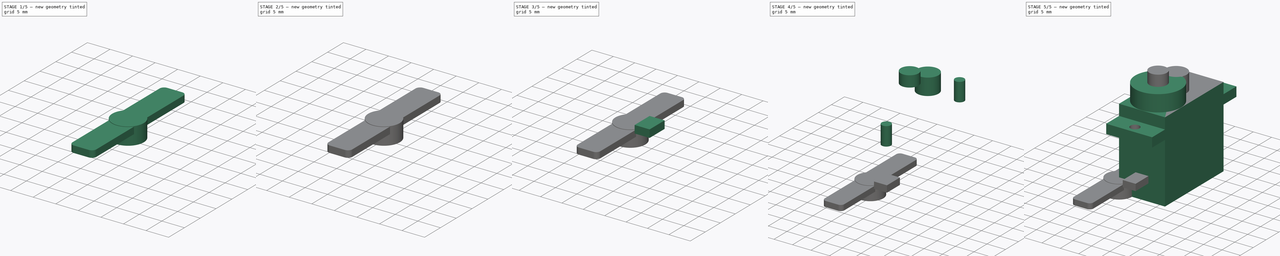
[diagram: build sequence overview — one tinted view per stage of 5, left to right]
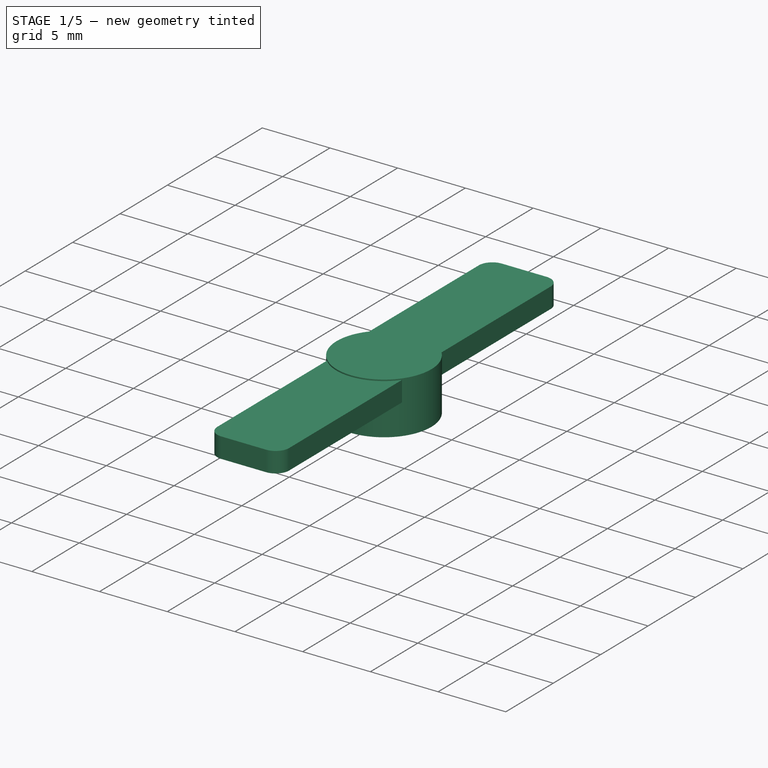
[diagram: stage 1 of 5 — iso view after this stage's code; geometry added in this stage tinted green]
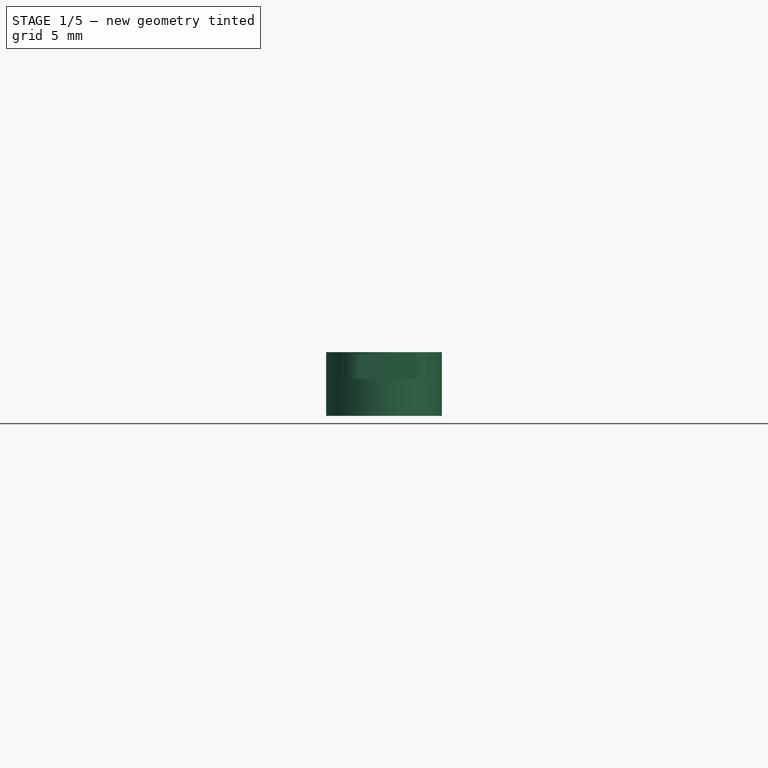
[diagram: stage 1 of 5 — front view after this stage's code; geometry added in this stage tinted green]
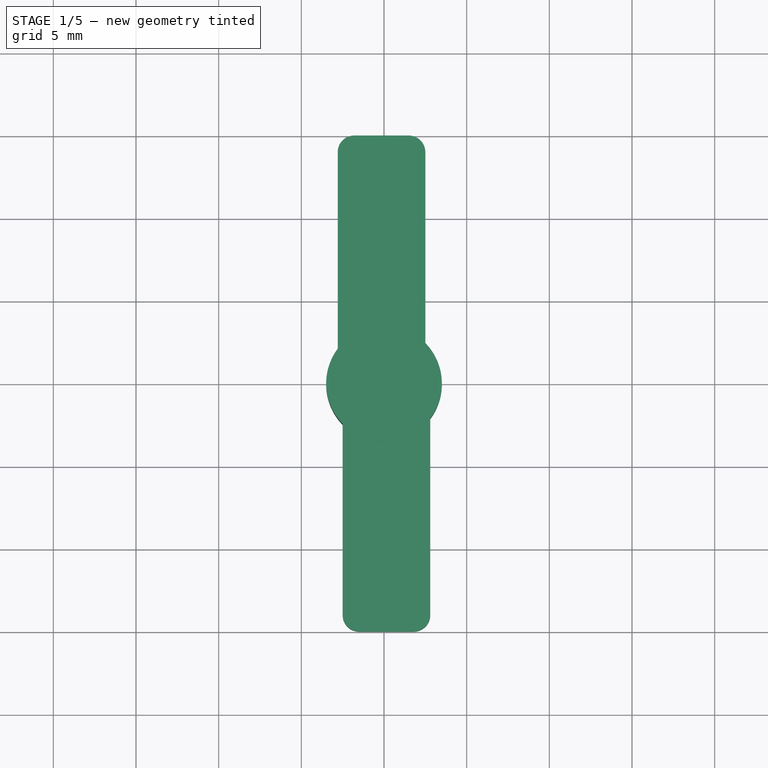
[diagram: stage 1 of 5 — top view after this stage's code; geometry added in this stage tinted green]
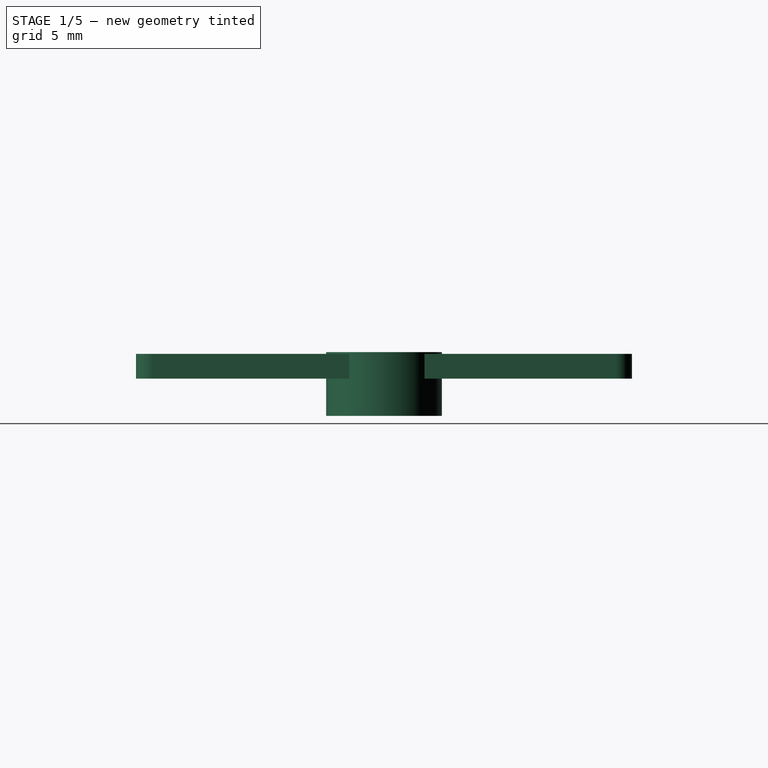
[diagram: stage 1 of 5 — right view after this stage's code; geometry added in this stage tinted green]
FCSTD DOCUMENT  (FreeCAD 0.18R4 (GitTag))
Label: MicroServo
License: All rights reserved
LicenseURL: http://en.wikipedia.org/wiki/All_rights_reserved
objects: Part::Cylinder×9, Part::MultiFuse×5, Part::Box×4, Part::Cut×3, Part::Fillet×3, Part::Feature×2, Sketcher::SketchObject×1, PartDesign::Pad×1, PartDesign::Body×1
note: 30 computed .brp shape members not serialized (recipe doc carries the construction recipe); baked Part::Feature solids carry a one-line shape summary decoded from their .brp

FEATURE [Part::Cylinder] Cylinder007
  Angle = 360
  AttacherType = Attacher::AttachEngine3D
  Height = 3.85
  Radius = 3.5
FEATURE [Part::Box] Box002  label="Cube002"
  AttacherType = Attacher::AttachEngine3D
  Height = 1.5
  Length = 5.3
  Placement = pos=(-2.5,-15,2.25) rot=(0,0,1;0rad)
  Width = 13.5
FEATURE [Part::Fillet] Fillet001
  Base = -> Box002
  Edges = 2 edges r=1: [Edge1,Edge5]
FEATURE [Part::Box] Box003  label="Cube003"
  AttacherType = Attacher::AttachEngine3D
  Height = 1.5
  Length = 5.3
  Placement = pos=(-2.5,-15,2.25) rot=(0,0,1;0rad)
  Width = 13.5
FEATURE [Part::Fillet] Fillet002
  Base = -> Box003
  Edges = 2 edges r=1: [Edge1,Edge5]
  Placement = pos=(0,0,0) rot=(0,0,1;3.14159rad)
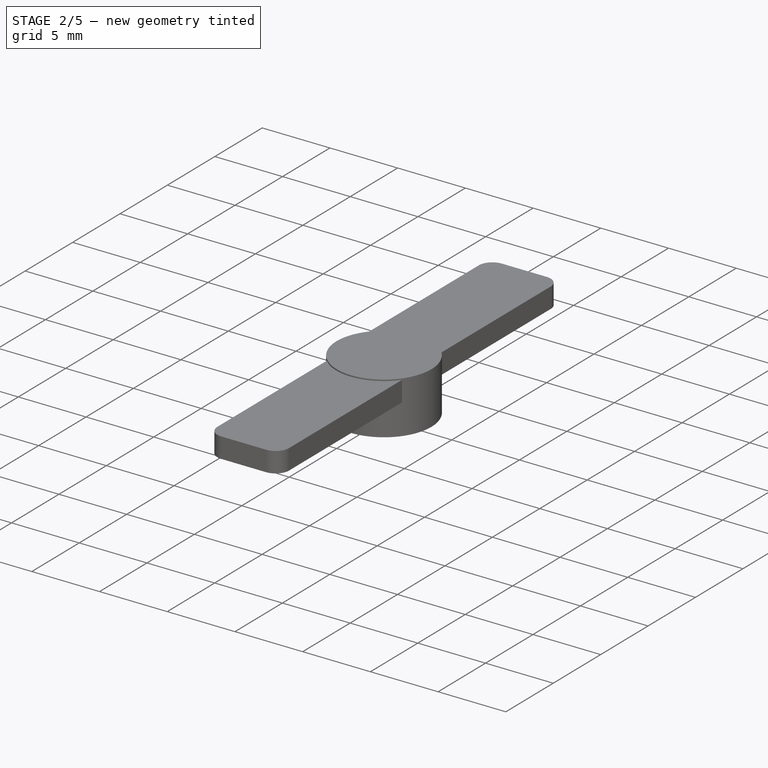
[diagram: stage 2 of 5 — iso view after this stage's code; geometry added in this stage tinted green]
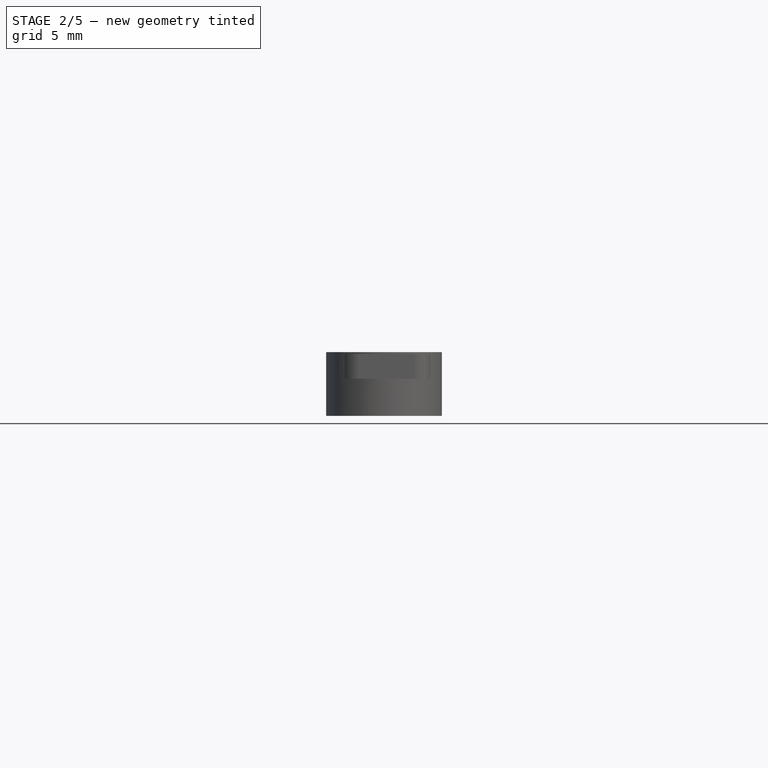
[diagram: stage 2 of 5 — front view after this stage's code; geometry added in this stage tinted green]
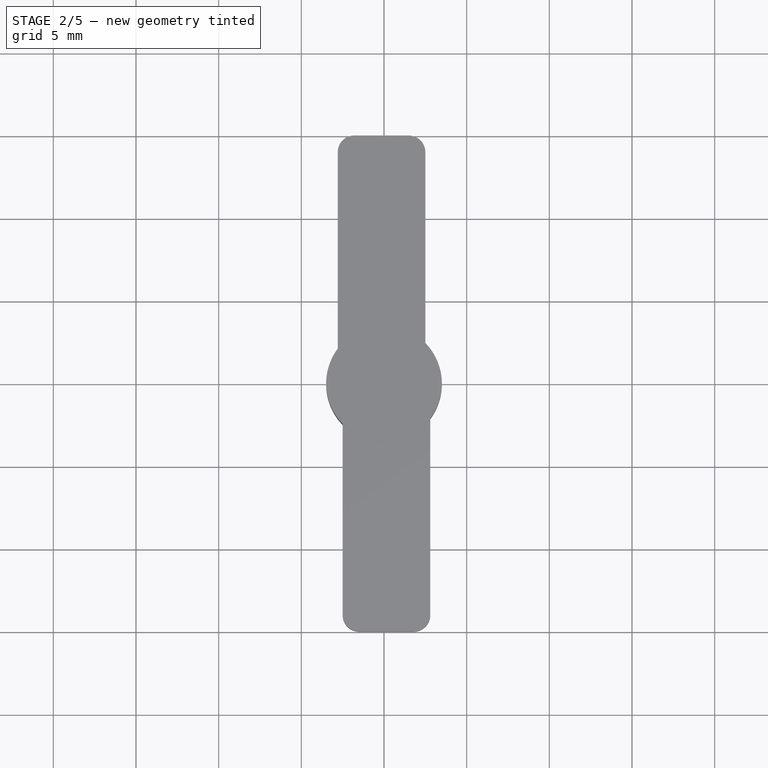
[diagram: stage 2 of 5 — top view after this stage's code; geometry added in this stage tinted green]
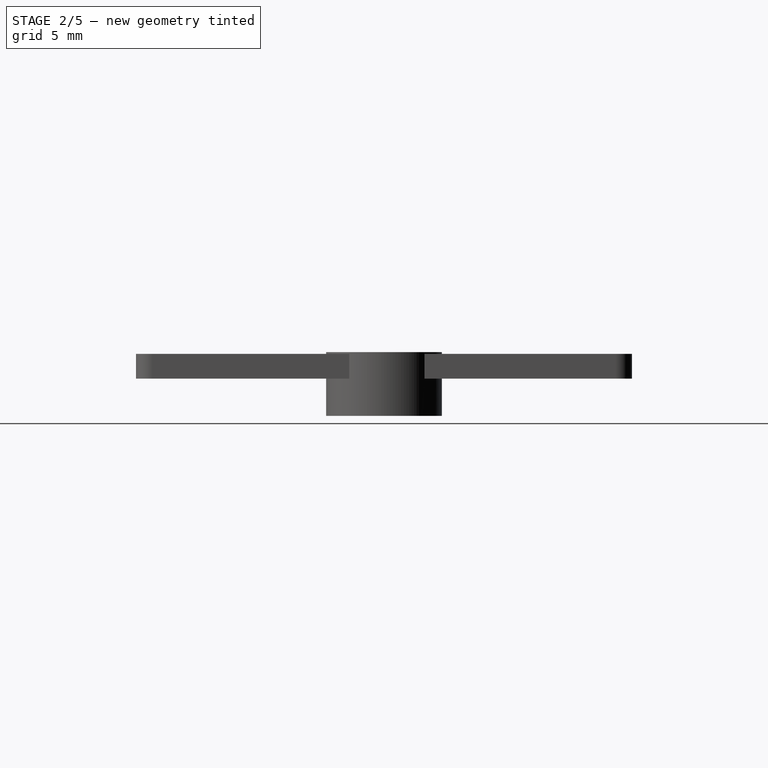
[diagram: stage 2 of 5 — right view after this stage's code; geometry added in this stage tinted green]
FEATURE [Part::Box] Box001  label="Cube001"
  AttacherType = Attacher::AttachEngine3D
  Height = 1.5
  Length = 5.3
  Placement = pos=(-2.5,-15,2.25) rot=(0,0,1;0rad)
  Width = 13.5
FEATURE [Part::Fillet] Fillet
  Base = -> Box001
  Edges = 2 edges r=1: [Edge1,Edge5]
FEATURE [Part::Cylinder] Cylinder008
  Angle = 360
  AttacherType = Attacher::AttachEngine3D
  Height = 3
  Radius = 2.25
FEATURE [Part::MultiFuse] Fusion004
  Shapes = -> [Cylinder007,Fillet002,Fillet001]
FEATURE [Part::Cut] Cut002  label="ServoArmDouble"
  Base = -> Fusion004
  Tool = -> Cylinder008
FEATURE [Part::Feature] Cut002_solid  label="ServoArmDouble (Solid)"
  shape: bbox 7 x 30 x 3.85 mm, 19 faces (baked)
FEATURE [Part::Feature] Cut001_solid  label="ServoArmSingle (Solid)"
  shape: bbox 7 x 18.5 x 3.85 mm, 12 faces (baked)
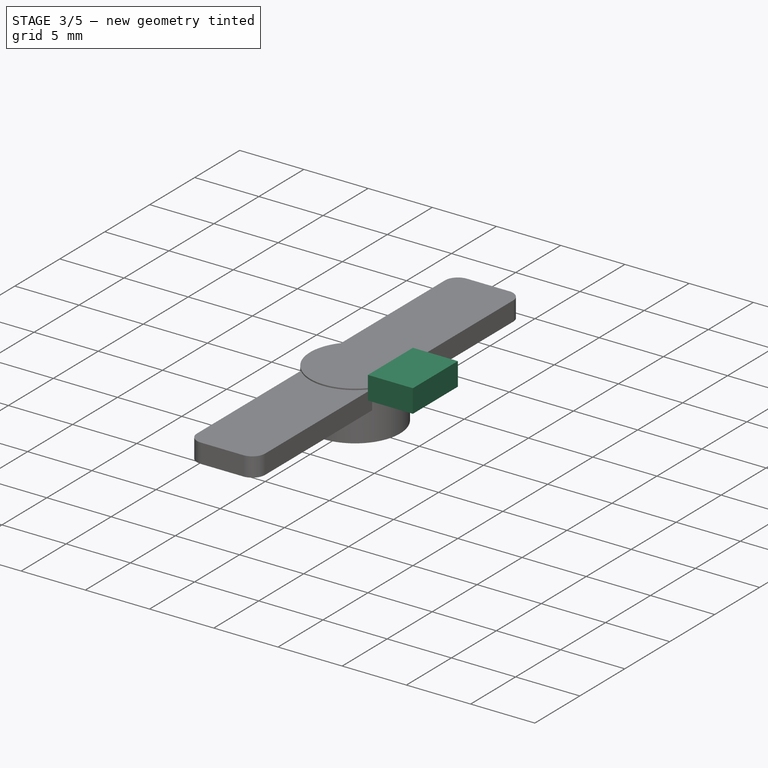
[diagram: stage 3 of 5 — iso view after this stage's code; geometry added in this stage tinted green]
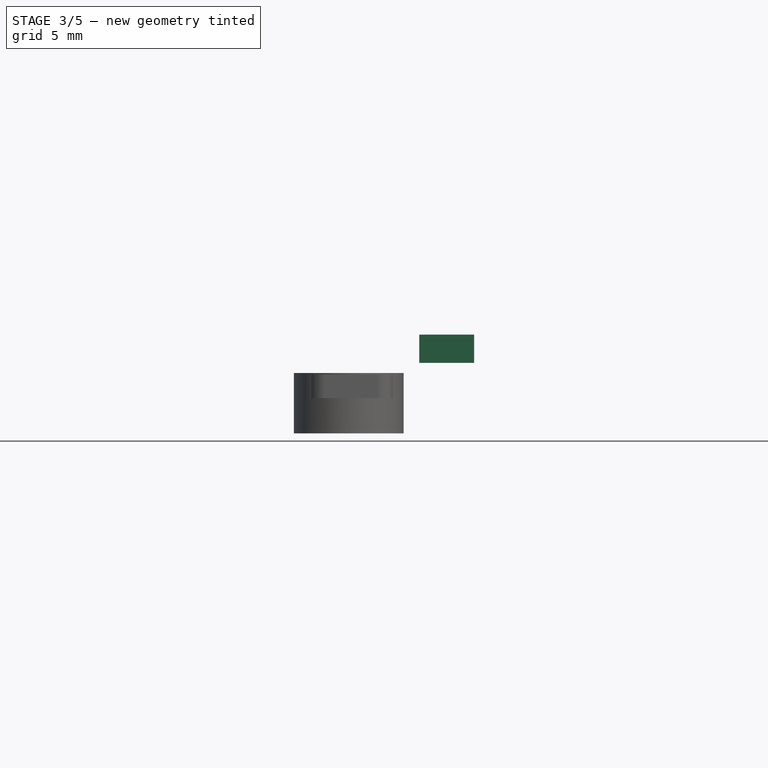
[diagram: stage 3 of 5 — front view after this stage's code; geometry added in this stage tinted green]
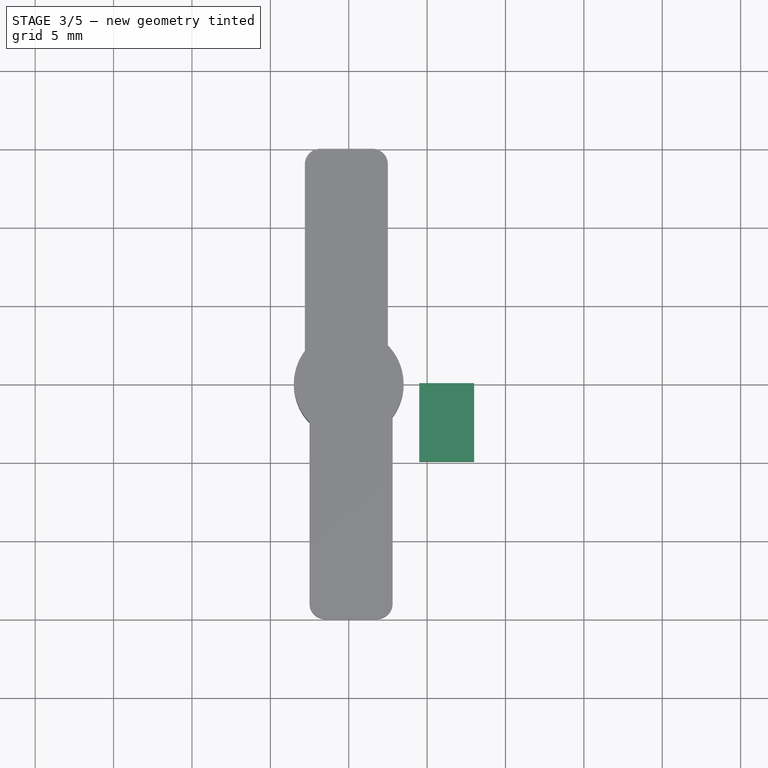
[diagram: stage 3 of 5 — top view after this stage's code; geometry added in this stage tinted green]
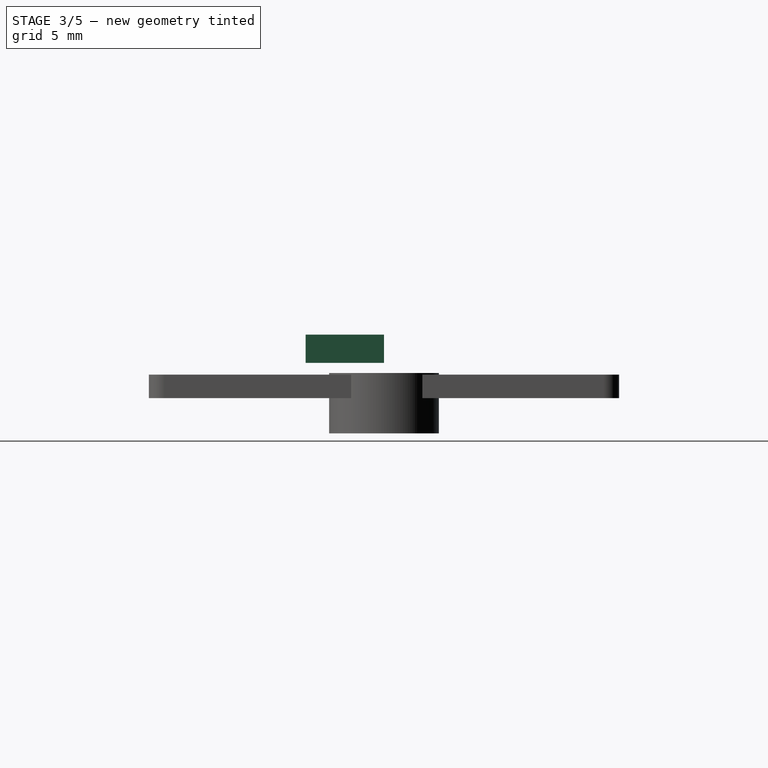
[diagram: stage 3 of 5 — right view after this stage's code; geometry added in this stage tinted green]
FEATURE [Part::Box] Box  label="Cube"
  AttacherType = Attacher::AttachEngine3D
  Height = 1.8
  Length = 3.5
  Placement = pos=(4.5,-5,4.5) rot=(0,0,1;0rad)
  Width = 5
FEATURE [Part::Cylinder] Cylinder005
  Angle = 360
  AttacherType = Attacher::AttachEngine3D
  Height = 3.85
  Radius = 3.5
FEATURE [Part::Cylinder] Cylinder006
  Angle = 360
  AttacherType = Attacher::AttachEngine3D
  Height = 3
  Radius = 2.25
FEATURE [Part::MultiFuse] Fusion003
  Shapes = -> [Cylinder005,Fillet]
FEATURE [Part::Cut] Cut001  label="ServoArmSingle"
  Base = -> Fusion003
  Tool = -> Cylinder006
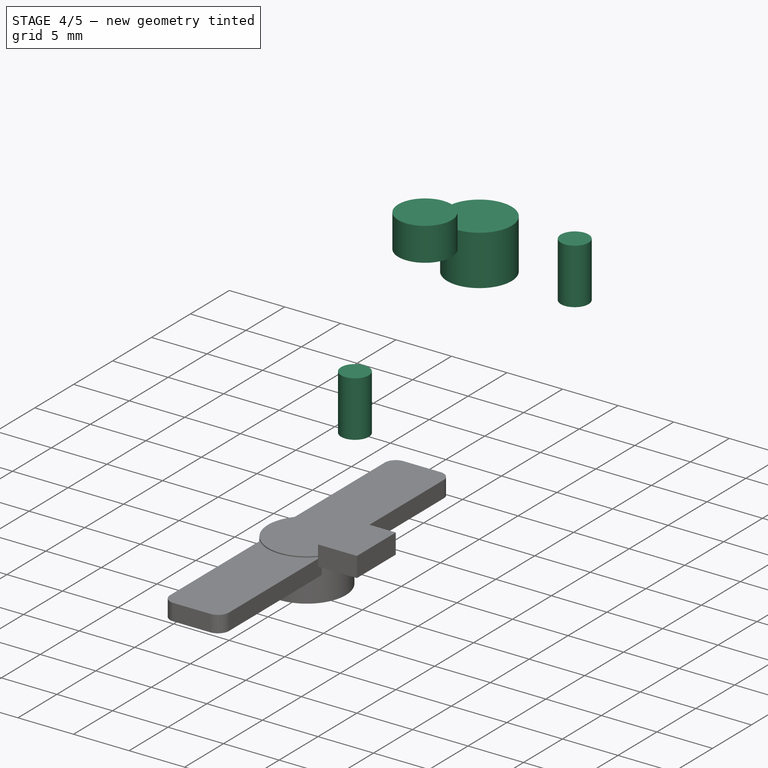
[diagram: stage 4 of 5 — iso view after this stage's code; geometry added in this stage tinted green]
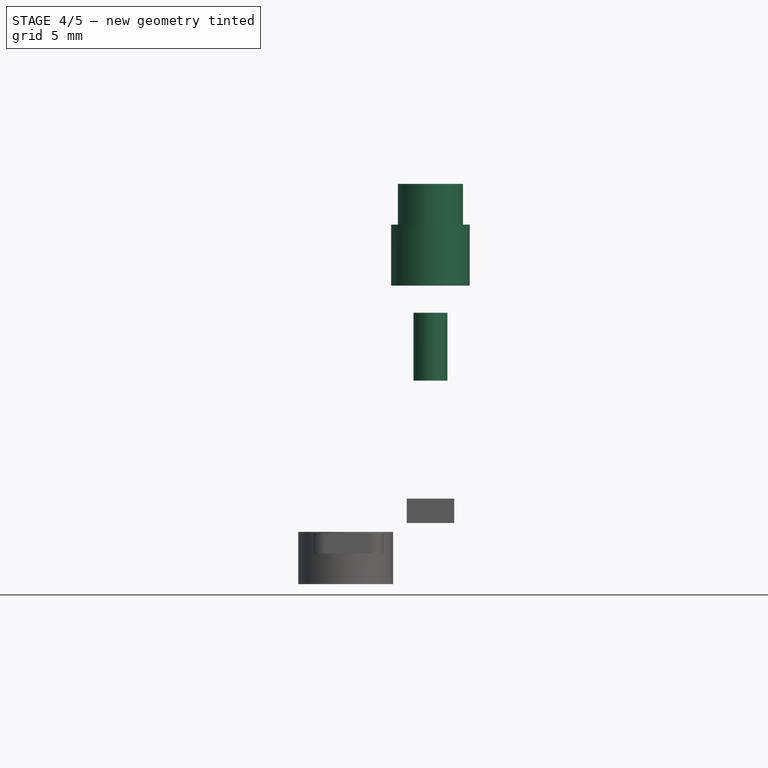
[diagram: stage 4 of 5 — front view after this stage's code; geometry added in this stage tinted green]
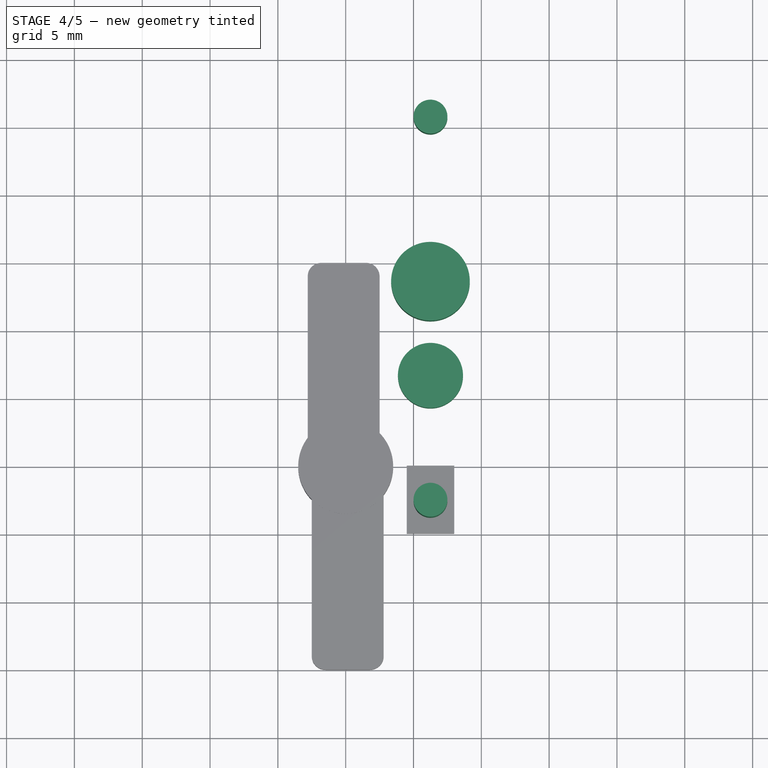
[diagram: stage 4 of 5 — top view after this stage's code; geometry added in this stage tinted green]
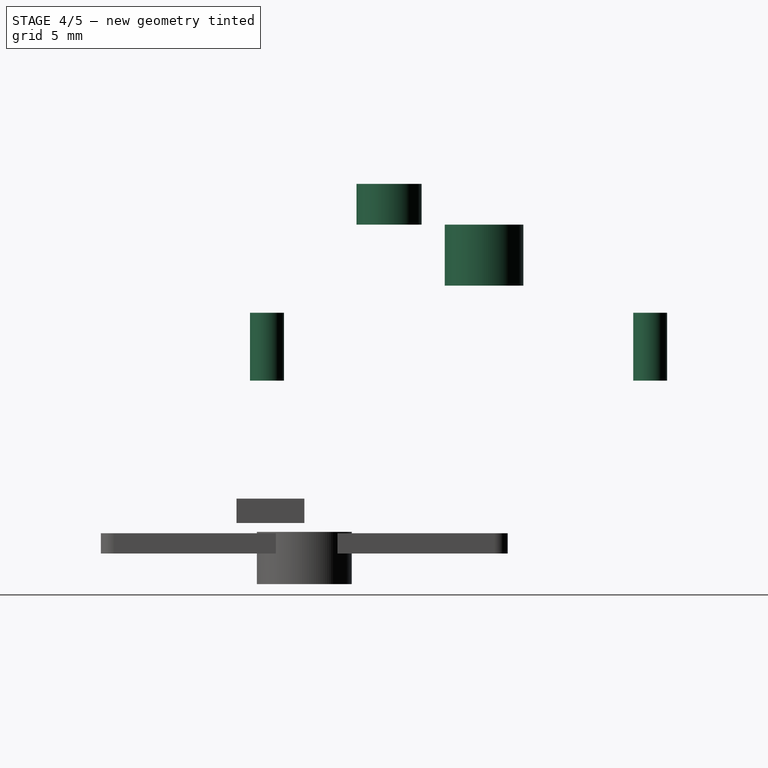
[diagram: stage 4 of 5 — right view after this stage's code; geometry added in this stage tinted green]
FEATURE [Part::Cylinder] Cylinder001
  Angle = 360
  AttacherType = Attacher::AttachEngine3D
  Height = 4.5
  Placement = pos=(6.25,13.25,22) rot=(0,0,1;0rad)
  Radius = 2.9
FEATURE [Part::Cylinder] Cylinder002
  Angle = 360
  AttacherType = Attacher::AttachEngine3D
  Height = 3
  Placement = pos=(6.25,6.25,26.5) rot=(0,0,1;0rad)
  Radius = 2.4
FEATURE [Part::Cylinder] Cylinder003
  Angle = 360
  AttacherType = Attacher::AttachEngine3D
  Height = 5
  Placement = pos=(6.25,-2.75,15) rot=(0,0,1;0rad)
  Radius = 1.25
FEATURE [Part::Cylinder] Cylinder004
  Angle = 360
  AttacherType = Attacher::AttachEngine3D
  Height = 5
  Placement = pos=(6.25,25.5,15) rot=(0,0,1;0rad)
  Radius = 1.25
FEATURE [Part::MultiFuse] Fusion001
  Shapes = -> [Cylinder004,Cylinder003]
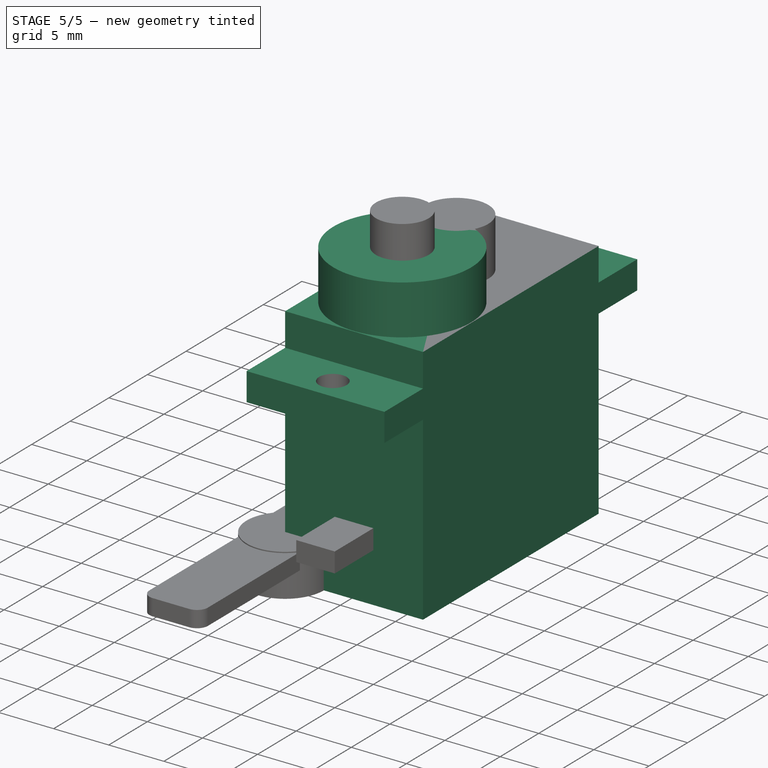
[diagram: stage 5 of 5 — iso view after this stage's code; geometry added in this stage tinted green]
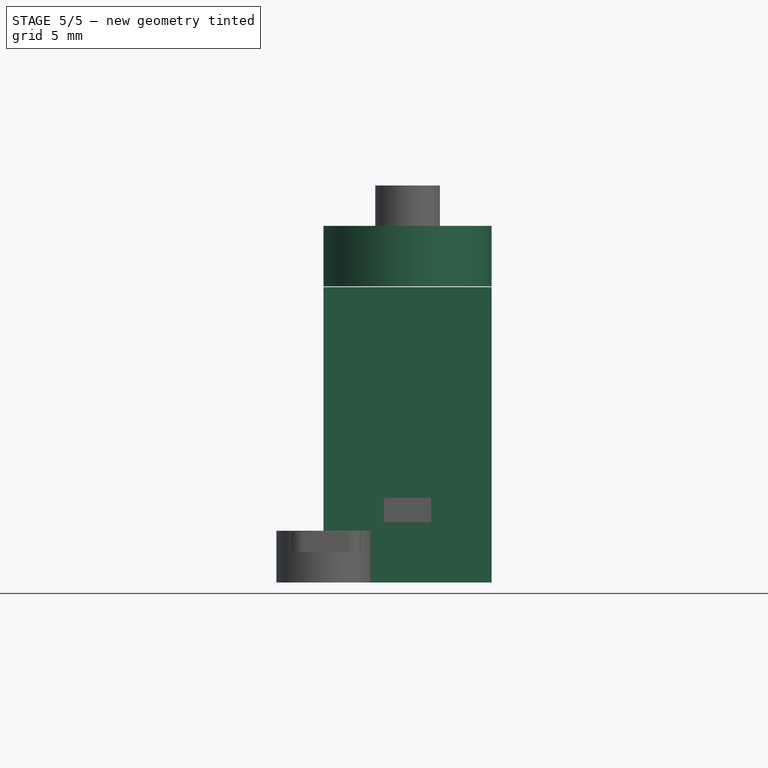
[diagram: stage 5 of 5 — front view after this stage's code; geometry added in this stage tinted green]
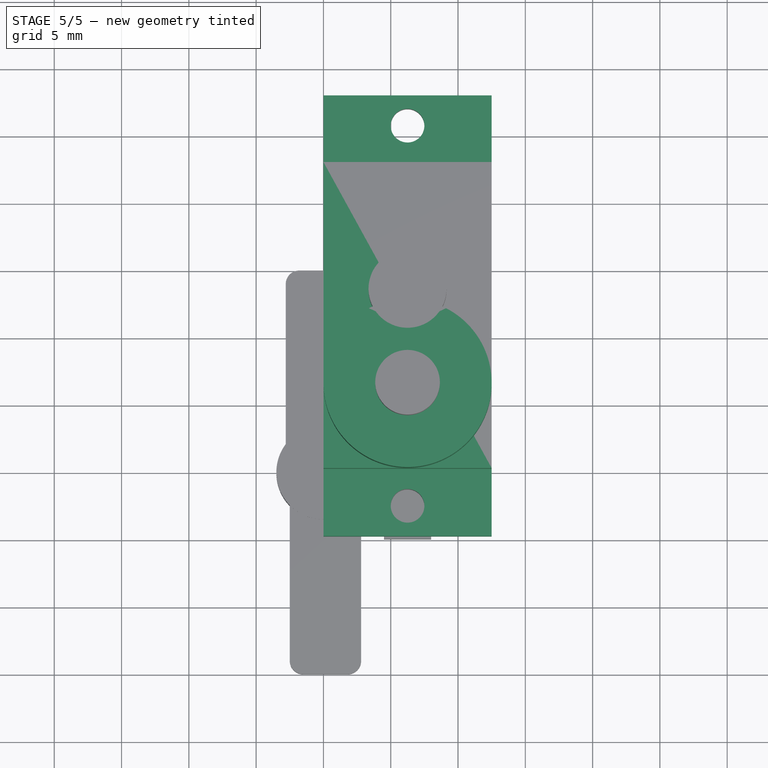
[diagram: stage 5 of 5 — top view after this stage's code; geometry added in this stage tinted green]
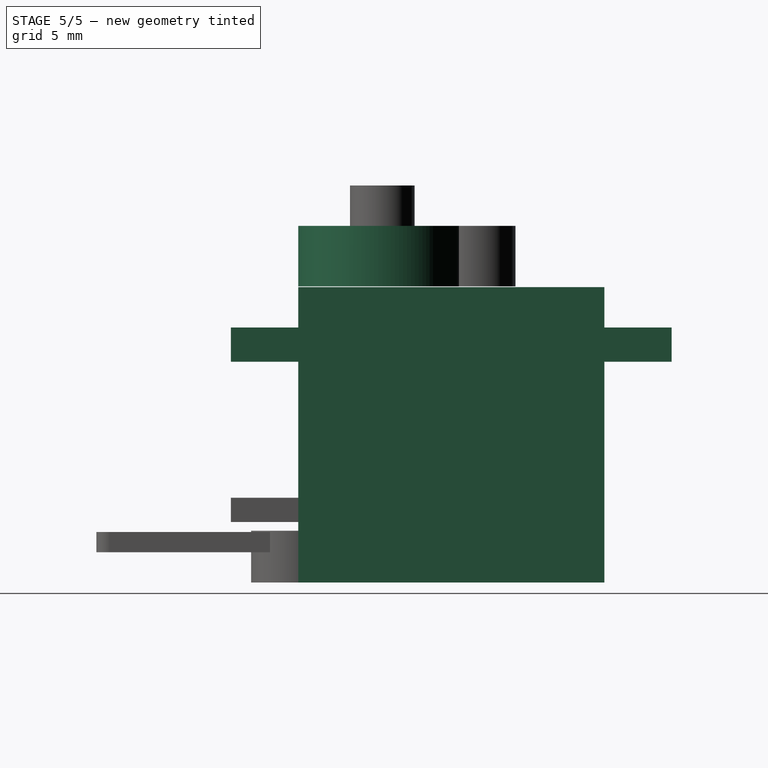
[diagram: stage 5 of 5 — right view after this stage's code; geometry added in this stage tinted green]
FEATURE [Sketcher::SketchObject] Sketch
  MapMode = 5
  Placement = pos=(0,0,0) rot=(0.57735,0.57735,0.57735;2.0944rad)
  Support = -> [YZ_Plane]
  sketch-geometry (12):
    g0: LineSegment StartX=0 StartY=0 StartZ=0 EndX=0 EndY=16.4 EndZ=0
    g1: LineSegment StartX=0 StartY=16.4 StartZ=0 EndX=-5 EndY=16.4 EndZ=0
    g2: LineSegment StartX=-5 StartY=16.4 StartZ=0 EndX=-5 EndY=18.95 EndZ=0
    g3: LineSegment StartX=-5 StartY=18.95 StartZ=0 EndX=0 EndY=18.95 EndZ=0
    g4: LineSegment StartX=-1e-16 StartY=18.95 StartZ=0 EndX=-1e-16 EndY=21.95 EndZ=0
    g5: LineSegment StartX=-1e-16 StartY=21.95 StartZ=0 EndX=22.75 EndY=21.95 EndZ=0
    g6: LineSegment StartX=22.75 StartY=21.95 StartZ=0 EndX=22.75 EndY=18.95 EndZ=0
    g7: LineSegment StartX=22.75 StartY=18.95 StartZ=0 EndX=27.75 EndY=18.95 EndZ=0
    g8: LineSegment StartX=27.75 StartY=18.95 StartZ=0 EndX=27.75 EndY=16.4 EndZ=0
    g9: LineSegment StartX=27.75 StartY=16.4 StartZ=0 EndX=22.75 EndY=16.4 EndZ=0
    g10: LineSegment StartX=22.75 StartY=16.4 StartZ=0 EndX=22.75 EndY=0 EndZ=0
    g11: LineSegment StartX=22.75 StartY=0 StartZ=0 EndX=0 EndY=0 EndZ=0
  constraints (35):
    c: Coincident(g0,g1)
    c: Coincident(g1,g2)
    c: Coincident(g2,g3)
    c: Coincident(g3,g4)
    c: Coincident(g4,g5)
    c: Coincident(g5,g6)
    c: Coincident(g6,g7)
    c: Coincident(g7,g8)
    c: Coincident(g8,g9)
    c: Coincident(g9,g10)
    c: Coincident(g10,g11)
    c: Coincident(g11,g0)
    c: Horizontal(g5)
    c: Horizontal(g3)
    c: Horizontal(g7)
    c: Horizontal(g9)
    c: Horizontal(g1)
    c: Horizontal(g11)
    c: Vertical(g4)
    c: Vertical(g6)
    c: Vertical(g2)
    c: Vertical(g8)
    c: Vertical(g0)
    c: Distance(g11) = 22.75
    c: Distance(g0) = 16.4
    c: Equal(g0,g10)
    c: Equal(g5,g11)
    c: Distance(g1) = 5
    c: Equal(g1,g3)
    c: Equal(g3,g7)
    c: Equal(g7,g9)
    c: Distance(g8) = 2.55
    c: Equal(g8,g2)
    c: Distance(g6) = 3
    c: Coincident(g0,g-1)
FEATURE [PartDesign::Pad] Pad
  Length = 12.5
  Length2 = 100
  Placement = pos=(0,0,0) rot=(0.57735,0.57735,0.57735;2.0944rad)
  Profile = -> Sketch
  Type = 0
FEATURE [PartDesign::Body] Body
  Group = -> [Sketch,Pad]
  Origin = -> Origin
  Tip = -> Pad
FEATURE [Part::Cylinder] Cylinder
  Angle = 360
  AttacherType = Attacher::AttachEngine3D
  Height = 4.5
  Placement = pos=(6.25,6.25,22) rot=(0,0,1;0rad)
  Radius = 6.25
FEATURE [Part::MultiFuse] Fusion
  Shapes = -> [Body,Cylinder,Cylinder001,Cylinder002]
FEATURE [Part::Cut] Cut  label="MicroServo_01"
  Base = -> Fusion
  Tool = -> Fusion001
FEATURE [Part::MultiFuse] Fusion002  label="MicroServo"
  Shapes = -> [Cut,Box]
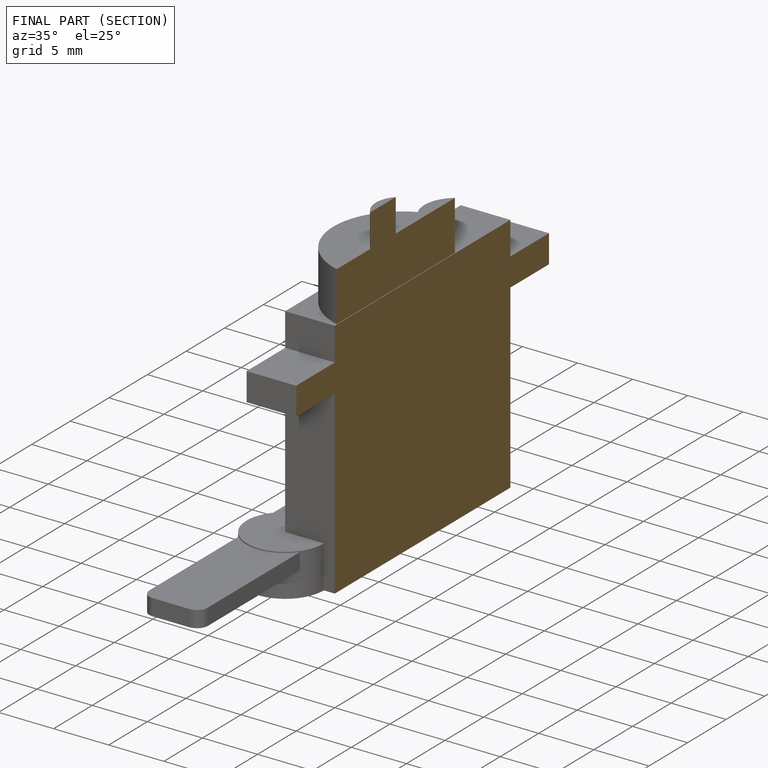
[diagram: finished part — half-section view (interior)]
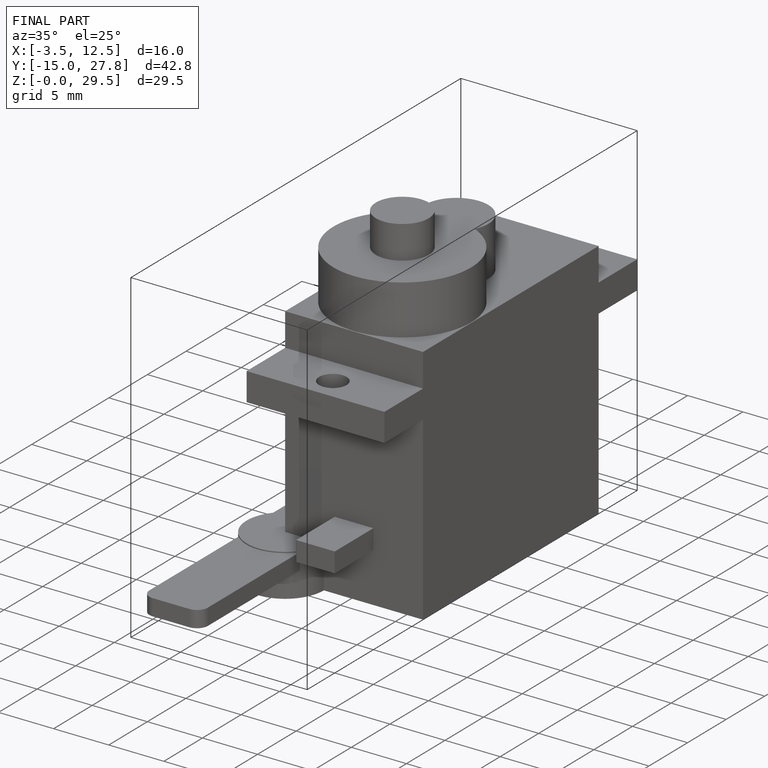
[diagram: finished part — iso view with bounding-box wireframe]
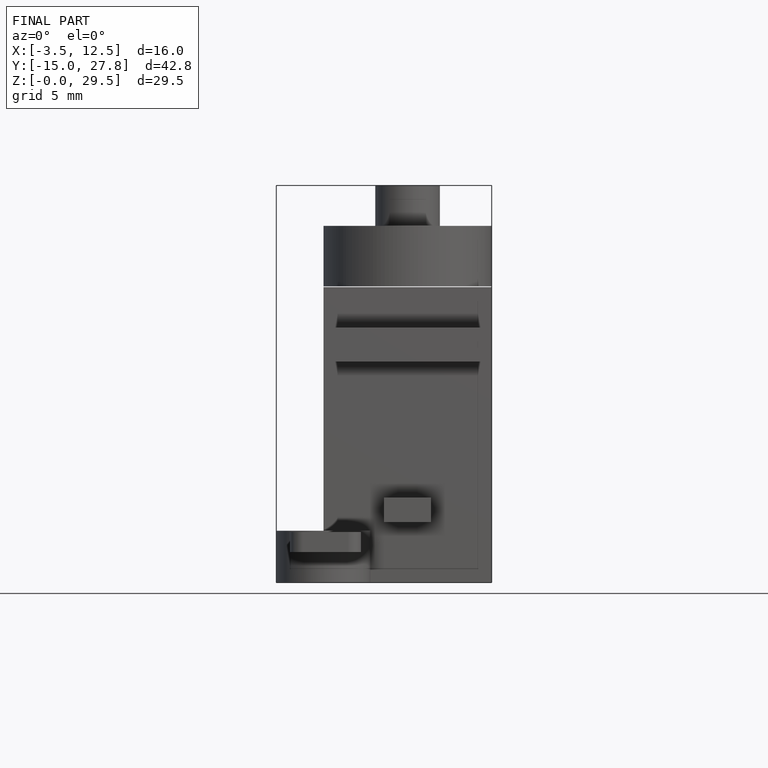
[diagram: finished part — front view with bounding-box wireframe]
